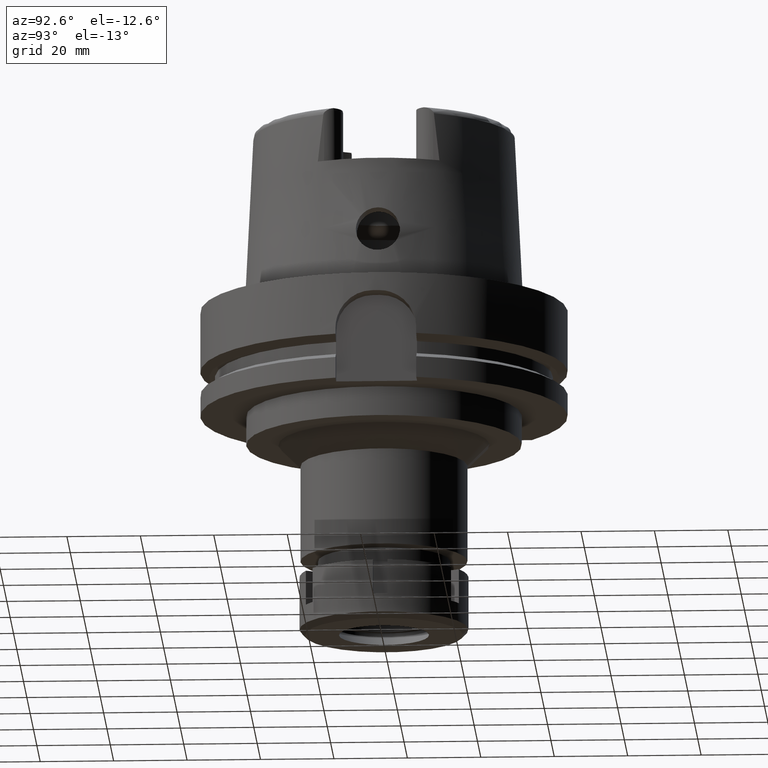
[diagram: clean part render]
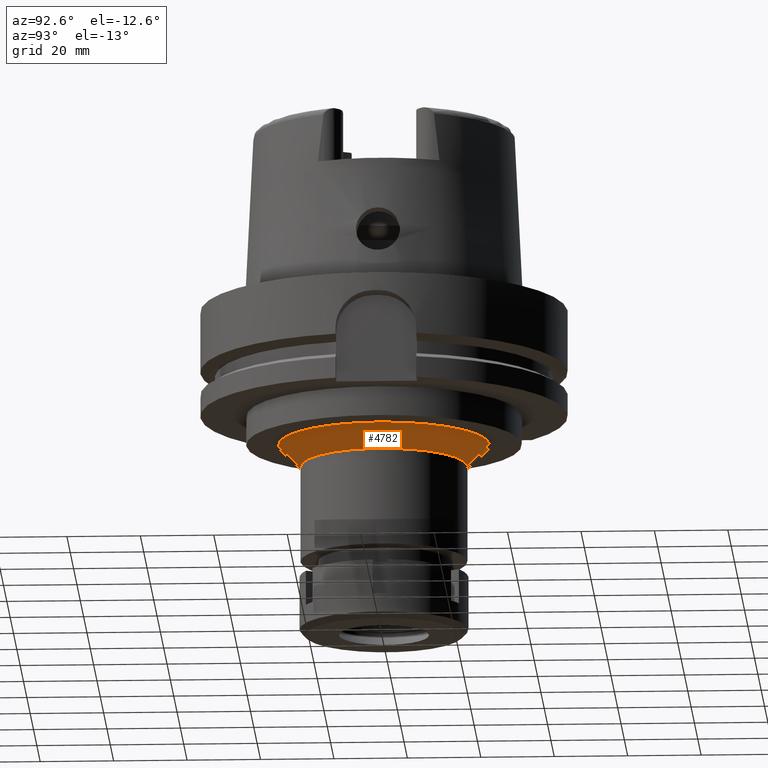
[diagram: same view with one face highlighted and labeled with its STEP entity id]
A machine part, auxiliary view. The second image highlights one B-rep face of the part: STEP entity #4782.
In plain terms, the highlighted conical surface has half-angle 45 deg.
Its self-contained STEP definition (entity closure, byte-faithful):
#33 = CARTESIAN_POINT ( 'NONE',  ( 0.0000000000000000000, 0.0000000000000000000, -43.00000000000000000 ) ) ;
#389 = CARTESIAN_POINT ( 'NONE',  ( 0.0000000000000000000, 22.75000000000000000, -43.00000000000000000 ) ) ;
#410 = CARTESIAN_POINT ( 'NONE',  ( 0.0000000000000000000, -28.75000000000000000, -37.00000000000000000 ) ) ;
#414 = EDGE_CURVE ( 'NONE', #813, #1021, #4861, .T. ) ;
#530 = DIRECTION ( 'NONE',  ( 0.0000000000000000000, -0.7071067811865474617, -0.7071067811865474617 ) ) ;
#557 = CONICAL_SURFACE ( 'NONE', #2649, 25.75000000000000000, 0.7853981633972997312 ) ;
#567 = CARTESIAN_POINT ( 'NONE',  ( 0.0000000000000000000, 28.75000000000000000, -37.00000000000000000 ) ) ;
#640 = AXIS2_PLACEMENT_3D ( 'NONE', #33, #936, #1496 ) ;
#813 = VERTEX_POINT ( 'NONE', #2643 ) ;
#936 = DIRECTION ( 'NONE',  ( 0.0000000000000000000, 0.0000000000000000000, -1.000000000000000000 ) ) ;
#1021 = VERTEX_POINT ( 'NONE', #389 ) ;
#1145 = CIRCLE ( 'NONE', #640, 22.75000000000000000 ) ;
#1184 = VECTOR ( 'NONE', #5472, 1000.000000000000114 ) ;
#1273 = EDGE_LOOP ( 'NONE', ( #2217, #3294, #6095, #2123 ) ) ;
#1496 = DIRECTION ( 'NONE',  ( 0.0000000000000000000, 1.000000000000000000, 0.0000000000000000000 ) ) ;
#1960 = AXIS2_PLACEMENT_3D ( 'NONE', #2116, #3131, #3948 ) ;
#2116 = CARTESIAN_POINT ( 'NONE',  ( 0.0000000000000000000, 0.0000000000000000000, -37.00000000000000000 ) ) ;
#2123 = ORIENTED_EDGE ( 'NONE', *, *, #414, .F. ) ;
#2145 = FACE_OUTER_BOUND ( 'NONE', #1273, .T. ) ;
#2158 = CIRCLE ( 'NONE', #1960, 28.75000000000000000 ) ;
#2217 = ORIENTED_EDGE ( 'NONE', *, *, #4669, .T. ) ;
#2268 = VECTOR ( 'NONE', #530, 1000.000000000000114 ) ;
#2643 = CARTESIAN_POINT ( 'NONE',  ( 0.0000000000000000000, 28.75000000000000000, -37.00000000000000000 ) ) ;
#2649 = AXIS2_PLACEMENT_3D ( 'NONE', #5456, #4104, #5148 ) ;
#3131 = DIRECTION ( 'NONE',  ( 0.0000000000000000000, 0.0000000000000000000, -1.000000000000000000 ) ) ;
#3245 = VERTEX_POINT ( 'NONE', #5745 ) ;
#3264 = EDGE_CURVE ( 'NONE', #1021, #3245, #1145, .T. ) ;
#3294 = ORIENTED_EDGE ( 'NONE', *, *, #5680, .T. ) ;
#3948 = DIRECTION ( 'NONE',  ( 0.0000000000000000000, 1.000000000000000000, 0.0000000000000000000 ) ) ;
#4048 = CARTESIAN_POINT ( 'NONE',  ( 0.0000000000000000000, -28.75000000000000000, -37.00000000000000000 ) ) ;
#4077 = VERTEX_POINT ( 'NONE', #4048 ) ;
#4104 = DIRECTION ( 'NONE',  ( 0.0000000000000000000, 0.0000000000000000000, 1.000000000000000000 ) ) ;
#4669 = EDGE_CURVE ( 'NONE', #813, #4077, #2158, .T. ) ;
#4782 = ADVANCED_FACE ( 'NONE', ( #2145 ), #557, .T. ) ;
#4861 = LINE ( 'NONE', #567, #2268 ) ;
#5068 = LINE ( 'NONE', #410, #1184 ) ;
#5148 = DIRECTION ( 'NONE',  ( 0.0000000000000000000, 1.000000000000000000, 0.0000000000000000000 ) ) ;
#5456 = CARTESIAN_POINT ( 'NONE',  ( 0.0000000000000000000, 0.0000000000000000000, -40.00000000000000000 ) ) ;
#5472 = DIRECTION ( 'NONE',  ( 0.0000000000000000000, 0.7071067811865474617, -0.7071067811865474617 ) ) ;
#5680 = EDGE_CURVE ( 'NONE', #4077, #3245, #5068, .T. ) ;
#5745 = CARTESIAN_POINT ( 'NONE',  ( 0.0000000000000000000, -22.75000000000000000, -43.00000000000000000 ) ) ;
#6095 = ORIENTED_EDGE ( 'NONE', *, *, #3264, .F. ) ;